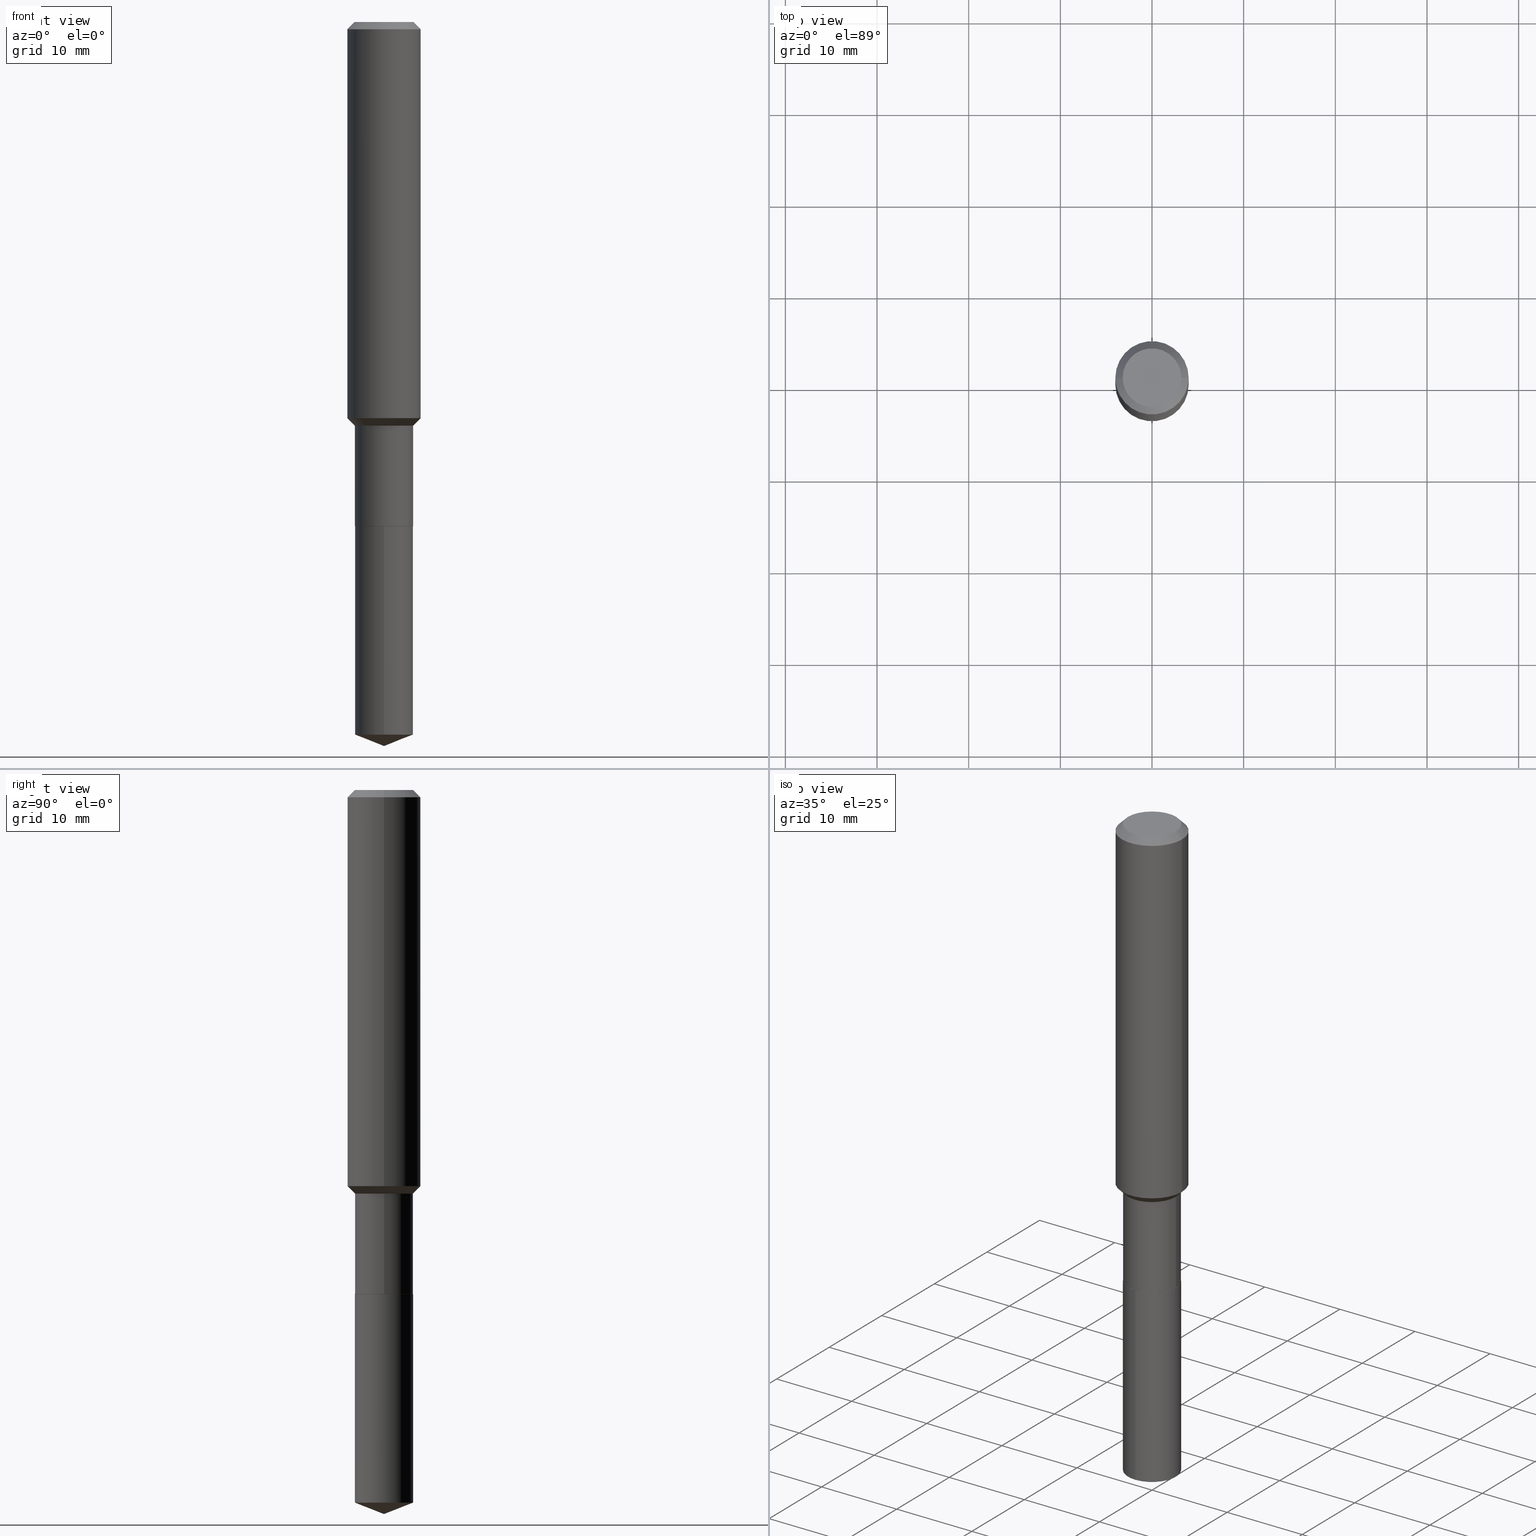
[diagram: canonical four-view strip — front | top / right | iso, engineering-drawing reading convention]
A machine part, canonical four-view strip (front | top / right | iso — engineering-drawing reading convention). The complete STEP part file that produces these views, byte-faithful:
ISO-10303-21;
HEADER;
FILE_DESCRIPTION (( 'STEP AP203' ),
    '1' );
FILE_NAME ('56410.STEP',
    '2024-04-24T17:19:02',
    ( '' ),
    ( '' ),
    'SwSTEP 2.0',
    'SolidWorks 2023',
    '' );
FILE_SCHEMA (( 'CONFIG_CONTROL_DESIGN' ));
ENDSEC;

DATA;
#1 = DIRECTION ( 'NONE',  ( -1.000000000000000000, 6.982962677686265922E-15, 0.000000000000000000 ) ) ;
#2 = DIRECTION ( 'NONE',  ( -6.982962677686265922E-15, -1.000000000000000000, 4.370956789862821150E-15 ) ) ;
#3 = DATE_AND_TIME ( #349, #156 ) ;
#4 = DIRECTION ( 'NONE',  ( 1.000000000000000000, -6.982962677686263555E-15, 0.000000000000000000 ) ) ;
#5 = DIRECTION ( 'NONE',  ( 1.000000000000000000, -6.982962677686263555E-15, 0.000000000000000000 ) ) ;
#6 = VECTOR ( 'NONE', #293, 39.37007874015748143 ) ;
#7 = DIRECTION ( 'NONE',  ( -0.7071067811865499042, 7.493145998870363626E-15, 0.7071067811865451302 ) ) ;
#8 = ADVANCED_FACE ( 'NONE', ( #452 ), #371, .T. ) ;
#9 = DIRECTION ( 'NONE',  ( 1.000000000000000000, -6.982962677686265922E-15, 4.876281427513067258E-29 ) ) ;
#10 = DIRECTION ( 'NONE',  ( 1.000000000000000000, -6.982962677686265922E-15, 4.876281427513067258E-29 ) ) ;
#11 = PERSON_AND_ORGANIZATION_ROLE ( 'classification_officer' ) ;
#12 = CARTESIAN_POINT ( 'NONE',  ( -0.1249999999999999861, -5.166399369987772470E-15, -1.734099999999999975 ) ) ;
#13 = LINE ( 'NONE', #175, #115 ) ;
#14 = FACE_OUTER_BOUND ( 'NONE', #227, .T. ) ;
#15 = PERSON_AND_ORGANIZATION_ROLE ( 'creator' ) ;
#16 = VECTOR ( 'NONE', #130, 39.37007874015748143 ) ;
#17 = CARTESIAN_POINT ( 'NONE',  ( 7.703226739483226095E-31, -1.099816621735597415E-16, -0.03150000000000018757 ) ) ;
#18 = ADVANCED_FACE ( 'NONE', ( #340 ), #447, .T. ) ;
#19 = AXIS2_PLACEMENT_3D ( 'NONE', #312, #236, #119 ) ;
#20 = EDGE_LOOP ( 'NONE', ( #54, #417, #181, #38 ) ) ;
#21 = PRODUCT_DEFINITION_SHAPE ( 'NONE', 'NONE',  #213 ) ;
#22 = MANIFOLD_SOLID_BREP ( 'Body-Move/Copy2[2]', #435 ) ;
#23 = ORIENTED_EDGE ( 'NONE', *, *, #101, .F. ) ;
#24 = VECTOR ( 'NONE', #409, 39.37007874015748143 ) ;
#25 = AXIS2_PLACEMENT_3D ( 'NONE', #59, #398, #9 ) ;
#26 = DATE_AND_TIME ( #104, #48 ) ;
#27 = CARTESIAN_POINT ( 'NONE',  ( -0.1244999999999999996, -6.672829609801627587E-15, -2.165299999999999780 ) ) ;
#28 = DIRECTION ( 'NONE',  ( 0.7071067811866682540, -2.468850131083521605E-15, 0.7071067811864267805 ) ) ;
#29 = CC_DESIGN_PERSON_AND_ORGANIZATION_ASSIGNMENT ( #45, #83, ( #204 ) ) ;
#30 = FACE_OUTER_BOUND ( 'NONE', #454, .T. ) ;
#31 = VERTEX_POINT ( 'NONE', #307 ) ;
#32 = VERTEX_POINT ( 'NONE', #131 ) ;
#33 = EDGE_CURVE ( 'NONE', #245, #253, #226, .T. ) ;
#34 =( NAMED_UNIT ( * ) SI_UNIT ( $, .STERADIAN. ) SOLID_ANGLE_UNIT ( ) );
#35 = CARTESIAN_POINT ( 'NONE',  ( 5.293950871629583880E-29, -7.558358802327641618E-15, -2.164800000000000058 ) ) ;
#36 = CARTESIAN_POINT ( 'NONE',  ( 5.295173606032675561E-29, -7.560104542997063911E-15, -2.165299999999999780 ) ) ;
#37 = AXIS2_PLACEMENT_3D ( 'NONE', #36, #252, #155 ) ;
#38 = ORIENTED_EDGE ( 'NONE', *, *, #351, .F. ) ;
#39 = CC_DESIGN_SECURITY_CLASSIFICATION ( #157, ( #60 ) ) ;
#40 = CARTESIAN_POINT ( 'NONE',  ( 5.295173606032675561E-29, -7.560104542997063911E-15, -2.165299999999999780 ) ) ;
#41 = AXIS2_PLACEMENT_3D ( 'NONE', #469, #390, #281 ) ;
#42 = CARTESIAN_POINT ( 'NONE',  ( 0.1575000000000000011, -1.209798283909146741E-15, -0.03150000000000018757 ) ) ;
#43 = PERSON ( 'UNSPECIFIED', 'UNSPECIFIED', 'UNSPECIFIED', ('UNSPECIFIED'), ('UNSPECIFIED'), ('UNSPECIFIED') ) ;
#44 = VERTEX_POINT ( 'NONE', #120 ) ;
#45 = PERSON_AND_ORGANIZATION ( #43, #403 ) ;
#46 = CARTESIAN_POINT ( 'NONE',  ( -8.728703347107302879E-16, -0.1250000000000075495, -2.165299999999999336 ) ) ;
#47 = PERSON_AND_ORGANIZATION ( #43, #403 ) ;
#48 = LOCAL_TIME ( 13, 19, 2.000000000000000000, #193 ) ;
#49 = COORDINATED_UNIVERSAL_TIME_OFFSET ( 5, 0, .BEHIND. ) ;
#50 = CIRCLE ( 'NONE', #481, 0.1575000000000000011 ) ;
#51 = CARTESIAN_POINT ( 'NONE',  ( 8.881784197001780860E-16, 0.1249999999999924366, -2.165300000000000669 ) ) ;
#52 = VERTEX_POINT ( 'NONE', #169 ) ;
#53 = DIRECTION ( 'NONE',  ( -2.445165186319441374E-29, 3.491916139771790878E-15, 1.000000000000000000 ) ) ;
#54 = ORIENTED_EDGE ( 'NONE', *, *, #33, .T. ) ;
#55 = DATE_TIME_ROLE ( 'classification_date' ) ;
#56 = CARTESIAN_POINT ( 'NONE',  ( 7.604952762490726839E-29, -1.086055757791822403E-14, -3.110199999999999854 ) ) ;
#57 = CIRCLE ( 'NONE', #470, 0.1249999999999999861 ) ;
#58 = CARTESIAN_POINT ( 'NONE',  ( 0.1244999999999999996, -8.429483396369002665E-15, -2.165299999999999780 ) ) ;
#59 = CARTESIAN_POINT ( 'NONE',  ( -9.439721640706201686E-47, 1.347742071746726764E-32, 3.860086710912459732E-18 ) ) ;
#60 = PRODUCT_DEFINITION_FORMATION_WITH_SPECIFIED_SOURCE ( 'ANY', '', #204, .NOT_KNOWN. ) ;
#61 = AXIS2_PLACEMENT_3D ( 'NONE', #295, #407, #107 ) ;
#62 = EDGE_CURVE ( 'NONE', #474, #323, #471, .T. ) ;
#63 = ORIENTED_EDGE ( 'NONE', *, *, #473, .T. ) ;
#64 = VERTEX_POINT ( 'NONE', #420 ) ;
#65 =( GEOMETRIC_REPRESENTATION_CONTEXT ( 3 ) GLOBAL_UNCERTAINTY_ASSIGNED_CONTEXT ( ( #286 ) ) GLOBAL_UNIT_ASSIGNED_CONTEXT ( ( #346, #444, #34 ) ) REPRESENTATION_CONTEXT ( 'NONE', 'WORKASPACE' ) );
#66 = APPLICATION_PROTOCOL_DEFINITION ( 'international standard', 'config_control_design', 1994, #161 ) ;
#67 = VECTOR ( 'NONE', #277, 39.37007874015748143 ) ;
#68 = CONICAL_SURFACE ( 'NONE', #385, 99.94676754583984746, 1.195550537616119069 ) ;
#69 = ORIENTED_EDGE ( 'NONE', *, *, #473, .F. ) ;
#70 = ORIENTED_EDGE ( 'NONE', *, *, #351, .T. ) ;
#71 = CC_DESIGN_PERSON_AND_ORGANIZATION_ASSIGNMENT ( #94, #167, ( #60 ) ) ;
#72 = DIRECTION ( 'NONE',  ( -2.445468806185136877E-29, 3.491481338843145188E-15, 1.000000000000000000 ) ) ;
#73 = ORIENTED_EDGE ( 'NONE', *, *, #393, .T. ) ;
#74 = ADVANCED_FACE ( 'NONE', ( #237 ), #172, .T. ) ;
#75 = DIRECTION ( 'NONE',  ( 1.000000000000000000, -6.982962677686267499E-15, 4.876176775795935793E-29 ) ) ;
#76 = ORIENTED_EDGE ( 'NONE', *, *, #209, .T. ) ;
#77 = ORIENTED_EDGE ( 'NONE', *, *, #441, .F. ) ;
#78 = ORIENTED_EDGE ( 'NONE', *, *, #269, .F. ) ;
#79 = DATE_AND_TIME ( #408, #141 ) ;
#80 = FACE_OUTER_BOUND ( 'NONE', #162, .T. ) ;
#81 = DIRECTION ( 'NONE',  ( -2.445468806185136597E-29, 3.491481338843145583E-15, 1.000000000000000000 ) ) ;
#82 = ORIENTED_EDGE ( 'NONE', *, *, #484, .F. ) ;
#83 = PERSON_AND_ORGANIZATION_ROLE ( 'design_owner' ) ;
#84 = DIRECTION ( 'NONE',  ( 0.7071067811865453523, -7.319954787623248157E-15, -0.7071067811865496822 ) ) ;
#85 = DIRECTION ( 'NONE',  ( -6.982962677686265922E-15, -1.000000000000000000, 3.498627837350008561E-15 ) ) ;
#86 = CYLINDRICAL_SURFACE ( 'NONE', #182, 0.1250000000000000000 ) ;
#87 = CARTESIAN_POINT ( 'NONE',  ( 4.240687456805644908E-29, -6.054577789687898491E-15, -1.734099999999999975 ) ) ;
#88 = VECTOR ( 'NONE', #173, 39.37007874015748143 ) ;
#89 = CIRCLE ( 'NONE', #219, 0.1250000000000000000 ) ;
#90 = AXIS2_PLACEMENT_3D ( 'NONE', #35, #370, #489 ) ;
#91 = CYLINDRICAL_SURFACE ( 'NONE', #19, 0.1575000000000000844 ) ;
#92 = EDGE_CURVE ( 'NONE', #44, #245, #127, .T. ) ;
#93 = CARTESIAN_POINT ( 'NONE',  ( 4.240687456805644908E-29, -6.054577789687898491E-15, -1.734099999999999975 ) ) ;
#94 = PERSON_AND_ORGANIZATION ( #43, #403 ) ;
#95 = CARTESIAN_POINT ( 'NONE',  ( 0.1575000000000001954, -7.040921267911083506E-15, -1.701600000000000001 ) ) ;
#96 = ORIENTED_EDGE ( 'NONE', *, *, #414, .F. ) ;
#97 = APPROVAL_PERSON_ORGANIZATION ( #116, #223, #263 ) ;
#98 = ORIENTED_EDGE ( 'NONE', *, *, #92, .F. ) ;
#99 = ORIENTED_EDGE ( 'NONE', *, *, #294, .T. ) ;
#100 = ORIENTED_EDGE ( 'NONE', *, *, #164, .T. ) ;
#101 = EDGE_CURVE ( 'NONE', #397, #317, #13, .T. ) ;
#102 = ORIENTED_EDGE ( 'NONE', *, *, #441, .T. ) ;
#103 = AXIS2_PLACEMENT_3D ( 'NONE', #339, #451, #487 ) ;
#104 = CALENDAR_DATE ( 2024, 24, 4 ) ;
#105 = DIRECTION ( 'NONE',  ( -6.982962677686265922E-15, -1.000000000000000000, 3.498627837350008561E-15 ) ) ;
#106 = ORIENTED_EDGE ( 'NONE', *, *, #309, .F. ) ;
#107 = DIRECTION ( 'NONE',  ( -1.000000000000000000, 6.982962677686265922E-15, -4.876176775795935793E-29 ) ) ;
#108 = ADVANCED_FACE ( 'NONE', ( #271 ), #91, .T. ) ;
#109 = DIRECTION ( 'NONE',  ( -2.445468806185136597E-29, 3.491481338843145583E-15, 1.000000000000000000 ) ) ;
#110 = VERTEX_POINT ( 'NONE', #380 ) ;
#111 = EDGE_CURVE ( 'NONE', #485, #253, #386, .T. ) ;
#112 = PLANE ( 'NONE',  #320 ) ;
#113 = ORIENTED_EDGE ( 'NONE', *, *, #33, .F. ) ;
#114 = CIRCLE ( 'NONE', #289, 0.1249999999999999861 ) ;
#115 = VECTOR ( 'NONE', #84, 39.37007874015748143 ) ;
#116 = PERSON_AND_ORGANIZATION ( #43, #403 ) ;
#117 = ORIENTED_EDGE ( 'NONE', *, *, #101, .T. ) ;
#118 = DIRECTION ( 'NONE',  ( 0.000000000000000000, 0.000000000000000000, 1.000000000000000000 ) ) ;
#119 = DIRECTION ( 'NONE',  ( 1.000000000000000000, -6.982962677686267499E-15, 4.876176775795936353E-29 ) ) ;
#120 = CARTESIAN_POINT ( 'NONE',  ( 0.1249999999999999861, -6.927448124398681041E-15, -1.734099999999999975 ) ) ;
#121 = AXIS2_PLACEMENT_3D ( 'NONE', #160, #201, #10 ) ;
#122 = ADVANCED_BREP_SHAPE_REPRESENTATION ( '56410', ( #336, #22, #273 ), #65 ) ;
#123 = ADVANCED_FACE ( 'NONE', ( #168 ), #266, .F. ) ;
#124 = EDGE_LOOP ( 'NONE', ( #367, #372, #419 ) ) ;
#125 = DATE_AND_TIME ( #268, #360 ) ;
#126 = CC_DESIGN_PERSON_AND_ORGANIZATION_ASSIGNMENT ( #241, #11, ( #157 ) ) ;
#127 = LINE ( 'NONE', #313, #430 ) ;
#128 = CARTESIAN_POINT ( 'NONE',  ( -8.728703347107081012E-16, -0.1250000000000106581, -3.060961190548132205 ) ) ;
#129 = DIRECTION ( 'NONE',  ( -6.982962677686265922E-15, -1.000000000000000000, 4.370956789862821150E-15 ) ) ;
#130 = DIRECTION ( 'NONE',  ( -2.445468806185136877E-29, 3.491481338843145188E-15, 1.000000000000000000 ) ) ;
#131 = CARTESIAN_POINT ( 'NONE',  ( 0.1244999999999999996, -8.429483396369002665E-15, -2.165299999999999780 ) ) ;
#132 = CARTESIAN_POINT ( 'NONE',  ( -0.1249999999999999861, -5.918289876307644428E-15, -1.734099999999999975 ) ) ;
#133 = CARTESIAN_POINT ( 'NONE',  ( 5.295173606032675561E-29, -7.560104542997063911E-15, -2.165299999999999780 ) ) ;
#134 = AXIS2_PLACEMENT_3D ( 'NONE', #147, #418, #190 ) ;
#135 = VECTOR ( 'NONE', #203, 39.37007874015748143 ) ;
#136 = CARTESIAN_POINT ( 'NONE',  ( -0.1575000000000000011, 9.898349595620272334E-16, -0.03150000000000018757 ) ) ;
#137 = FACE_OUTER_BOUND ( 'NONE', #260, .T. ) ;
#138 = ORIENTED_EDGE ( 'NONE', *, *, #166, .T. ) ;
#139 = DIRECTION ( 'NONE',  ( -2.445468806185136597E-29, 3.491481338843145583E-15, 1.000000000000000000 ) ) ;
#140 = EDGE_CURVE ( 'NONE', #32, #64, #411, .T. ) ;
#141 = LOCAL_TIME ( 13, 19, 2.000000000000000000, #478 ) ;
#142 = EDGE_LOOP ( 'NONE', ( #404, #208, #144, #329 ) ) ;
#143 = ORIENTED_EDGE ( 'NONE', *, *, #294, .F. ) ;
#144 = ORIENTED_EDGE ( 'NONE', *, *, #140, .T. ) ;
#145 = EDGE_CURVE ( 'NONE', #153, #52, #486, .T. ) ;
#146 = COORDINATED_UNIVERSAL_TIME_OFFSET ( 5, 0, .BEHIND. ) ;
#147 = CARTESIAN_POINT ( 'NONE',  ( 5.295173606032675561E-29, -7.560104542997063911E-15, -2.165299999999999780 ) ) ;
#148 = ORIENTED_EDGE ( 'NONE', *, *, #459, .T. ) ;
#149 = AXIS2_PLACEMENT_3D ( 'NONE', #93, #179, #4 ) ;
#150 = LOCAL_TIME ( 13, 19, 2.000000000000000000, #463 ) ;
#151 = AXIS2_PLACEMENT_3D ( 'NONE', #198, #427, #461 ) ;
#152 = DIRECTION ( 'NONE',  ( -2.445468806185136597E-29, 3.491481338843145583E-15, 1.000000000000000000 ) ) ;
#153 = VERTEX_POINT ( 'NONE', #56 ) ;
#154 = PLANE ( 'NONE',  #61 ) ;
#155 = DIRECTION ( 'NONE',  ( -6.982962677686265922E-15, -1.000000000000000000, 4.370956789862821150E-15 ) ) ;
#156 = LOCAL_TIME ( 13, 19, 2.000000000000000000, #146 ) ;
#157 = SECURITY_CLASSIFICATION ( '', '', #230 ) ;
#158 = DIRECTION ( 'NONE',  ( 6.982962677686265922E-15, 1.000000000000000000, -3.491916139771791272E-15 ) ) ;
#159 = AXIS2_PLACEMENT_3D ( 'NONE', #133, #53, #355 ) ;
#160 = CARTESIAN_POINT ( 'NONE',  ( -9.439721640706201686E-47, 1.347742071746726764E-32, 3.860086710912459732E-18 ) ) ;
#161 = APPLICATION_CONTEXT ( 'configuration controlled 3d designs of mechanical parts and assemblies' ) ;
#162 = EDGE_LOOP ( 'NONE', ( #99, #214 ) ) ;
#163 = LINE ( 'NONE', #46, #330 ) ;
#164 = EDGE_CURVE ( 'NONE', #317, #323, #50, .T. ) ;
#165 = DIRECTION ( 'NONE',  ( -2.445165186319441374E-29, 3.491916139771791272E-15, 1.000000000000000000 ) ) ;
#166 = EDGE_CURVE ( 'NONE', #280, #52, #89, .T. ) ;
#167 = PERSON_AND_ORGANIZATION_ROLE ( 'design_supplier' ) ;
#168 = FACE_OUTER_BOUND ( 'NONE', #304, .T. ) ;
#169 = CARTESIAN_POINT ( 'NONE',  ( 8.881784197001997797E-16, 0.1249999999999892863, -3.060961190548133093 ) ) ;
#170 = DIRECTION ( 'NONE',  ( -2.445165186319441374E-29, 3.491916139771791272E-15, 1.000000000000000000 ) ) ;
#171 = FACE_OUTER_BOUND ( 'NONE', #210, .T. ) ;
#172 = CYLINDRICAL_SURFACE ( 'NONE', #275, 0.1575000000000000844 ) ;
#173 = DIRECTION ( 'NONE',  ( -2.445468806185136877E-29, 3.491481338843145188E-15, 1.000000000000000000 ) ) ;
#174 = CARTESIAN_POINT ( 'NONE',  ( 5.295173606032675561E-29, -7.560104542997063911E-15, -2.165299999999999780 ) ) ;
#175 = CARTESIAN_POINT ( 'NONE',  ( 0.1575000000000000011, -1.190510096822576026E-15, -0.03150000000000018757 ) ) ;
#176 = VECTOR ( 'NONE', #72, 39.37007874015748143 ) ;
#177 = DIRECTION ( 'NONE',  ( 2.445468806185136597E-29, -3.491481338843145583E-15, -1.000000000000000000 ) ) ;
#178 = CALENDAR_DATE ( 2024, 24, 4 ) ;
#179 = DIRECTION ( 'NONE',  ( -2.445468806185136597E-29, 3.491481338843145583E-15, 1.000000000000000000 ) ) ;
#180 = APPROVAL_STATUS ( 'not_yet_approved' ) ;
#181 = ORIENTED_EDGE ( 'NONE', *, *, #164, .F. ) ;
#182 = AXIS2_PLACEMENT_3D ( 'NONE', #40, #466, #129 ) ;
#183 = ORIENTED_EDGE ( 'NONE', *, *, #231, .T. ) ;
#184 = DATE_TIME_ROLE ( 'creation_date' ) ;
#185 = VERTEX_POINT ( 'NONE', #27 ) ;
#186 = AXIS2_PLACEMENT_3D ( 'NONE', #362, #152, #446 ) ;
#187 = AXIS2_PLACEMENT_3D ( 'NONE', #229, #310, #379 ) ;
#188 = CARTESIAN_POINT ( 'NONE',  ( 5.293950871629583880E-29, -7.558358802327641618E-15, -2.164800000000000058 ) ) ;
#189 = ORIENTED_EDGE ( 'NONE', *, *, #331, .T. ) ;
#190 = DIRECTION ( 'NONE',  ( 1.000000000000000000, -6.982962677686266711E-15, 0.000000000000000000 ) ) ;
#191 = EDGE_LOOP ( 'NONE', ( #138, #63, #143, #77 ) ) ;
#192 = FACE_OUTER_BOUND ( 'NONE', #142, .T. ) ;
#193 = COORDINATED_UNIVERSAL_TIME_OFFSET ( 5, 0, .BEHIND. ) ;
#194 = CIRCLE ( 'NONE', #490, 0.1250000000000000555 ) ;
#195 = VECTOR ( 'NONE', #165, 39.37007874015748143 ) ;
#196 = ADVANCED_FACE ( 'NONE', ( #247 ), #154, .F. ) ;
#197 = APPROVAL_ROLE ( '' ) ;
#198 = CARTESIAN_POINT ( 'NONE',  ( 4.161209720604628507E-29, -5.941104646175496815E-15, -1.701600000000000001 ) ) ;
#199 = CC_DESIGN_APPROVAL ( #475, ( #157 ) ) ;
#200 = AXIS2_PLACEMENT_3D ( 'NONE', #369, #460, #1 ) ;
#201 = DIRECTION ( 'NONE',  ( -2.445468806185136597E-29, 3.491481338843145583E-15, 1.000000000000000000 ) ) ;
#202 = DIRECTION ( 'NONE',  ( 1.000000000000000000, -6.982962677686267499E-15, 4.876176775795936353E-29 ) ) ;
#203 = DIRECTION ( 'NONE',  ( -2.445468806185136877E-29, 3.491481338843145188E-15, 1.000000000000000000 ) ) ;
#204 = PRODUCT ( '56410', '56410', '', ( #301 ) ) ;
#205 = CARTESIAN_POINT ( 'NONE',  ( 7.606279148417832493E-29, -1.085867462901663375E-14, -3.110199999999999854 ) ) ;
#206 = VECTOR ( 'NONE', #28, 39.37007874015748143 ) ;
#207 = APPROVAL ( #287, 'UNSPECIFIED' ) ;
#208 = ORIENTED_EDGE ( 'NONE', *, *, #324, .T. ) ;
#209 = EDGE_CURVE ( 'NONE', #153, #280, #332, .T. ) ;
#210 = EDGE_LOOP ( 'NONE', ( #69, #450, #102, #82 ) ) ;
#211 = AXIS2_PLACEMENT_3D ( 'NONE', #423, #316, #85 ) ;
#212 = CIRCLE ( 'NONE', #134, 0.1244999999999999996 ) ;
#213 = PRODUCT_DEFINITION ( 'UNKNOWN', '', #60, #381 ) ;
#214 = ORIENTED_EDGE ( 'NONE', *, *, #484, .T. ) ;
#215 = ORIENTED_EDGE ( 'NONE', *, *, #62, .T. ) ;
#216 = FACE_OUTER_BOUND ( 'NONE', #278, .T. ) ;
#217 = ADVANCED_FACE ( 'NONE', ( #216 ), #413, .T. ) ;
#218 = ADVANCED_FACE ( 'NONE', ( #14 ), #352, .T. ) ;
#219 = AXIS2_PLACEMENT_3D ( 'NONE', #338, #443, #488 ) ;
#220 = CARTESIAN_POINT ( 'NONE',  ( 5.295173606032675561E-29, -7.560104542997063911E-15, -2.165299999999999780 ) ) ;
#221 = CARTESIAN_POINT ( 'NONE',  ( 0.000000000000000000, 0.000000000000000000, 0.000000000000000000 ) ) ;
#222 = LENGTH_MEASURE_WITH_UNIT ( LENGTH_MEASURE( 0.02539999999999999897 ), #274 );
#223 = APPROVAL ( #249, 'UNSPECIFIED' ) ;
#224 = CARTESIAN_POINT ( 'NONE',  ( -8.866073572750232729E-28, 1.266173972733747384E-13, 36.25987874015748247 ) ) ;
#225 = CIRCLE ( 'NONE', #90, 0.1250000000000000555 ) ;
#226 = CIRCLE ( 'NONE', #151, 0.1575000000000001954 ) ;
#227 = EDGE_LOOP ( 'NONE', ( #23, #106, #215, #183 ) ) ;
#228 = LINE ( 'NONE', #432, #135 ) ;
#229 = CARTESIAN_POINT ( 'NONE',  ( 5.295173606032675561E-29, -7.560104542997063911E-15, -2.165299999999999780 ) ) ;
#230 = SECURITY_CLASSIFICATION_LEVEL ( 'unclassified' ) ;
#231 = EDGE_CURVE ( 'NONE', #323, #317, #257, .T. ) ;
#232 = APPROVAL_PERSON_ORGANIZATION ( #378, #207, #197 ) ;
#233 = CARTESIAN_POINT ( 'NONE',  ( 0.000000000000000000, 0.000000000000000000, 0.000000000000000000 ) ) ;
#234 = DIRECTION ( 'NONE',  ( -2.445468806185136597E-29, 3.491481338843145583E-15, 1.000000000000000000 ) ) ;
#235 = CIRCLE ( 'NONE', #159, 0.1250000000000000000 ) ;
#236 = DIRECTION ( 'NONE',  ( -2.445468806185136597E-29, 3.491481338843145583E-15, 1.000000000000000000 ) ) ;
#237 = FACE_OUTER_BOUND ( 'NONE', #20, .T. ) ;
#238 = DIMENSIONAL_EXPONENTS ( 1.000000000000000000, 0.000000000000000000, 0.000000000000000000, 0.000000000000000000, 0.000000000000000000, 0.000000000000000000, 0.000000000000000000 ) ;
#239 = DIRECTION ( 'NONE',  ( -1.000000000000000000, 6.982962677686265922E-15, 0.000000000000000000 ) ) ;
#240 = ORIENTED_EDGE ( 'NONE', *, *, #279, .F. ) ;
#241 = PERSON_AND_ORGANIZATION ( #43, #403 ) ;
#242 = EDGE_LOOP ( 'NONE', ( #73, #433, #96, #440 ) ) ;
#243 = ORIENTED_EDGE ( 'NONE', *, *, #309, .T. ) ;
#244 = CARTESIAN_POINT ( 'NONE',  ( 7.703226739483226095E-31, -1.099816621735597415E-16, -0.03150000000000018757 ) ) ;
#245 = VERTEX_POINT ( 'NONE', #95 ) ;
#246 = AXIS2_PLACEMENT_3D ( 'NONE', #174, #388, #468 ) ;
#247 = FACE_OUTER_BOUND ( 'NONE', #348, .T. ) ;
#248 = AXIS2_PLACEMENT_3D ( 'NONE', #244, #177, #239 ) ;
#249 = APPROVAL_STATUS ( 'not_yet_approved' ) ;
#250 = CARTESIAN_POINT ( 'NONE',  ( 0.1575000000000000844, -1.099816621735587677E-15, 7.679978421878603638E-30 ) ) ;
#251 = CC_DESIGN_DATE_AND_TIME_ASSIGNMENT ( #26, #184, ( #213 ) ) ;
#252 = DIRECTION ( 'NONE',  ( -2.445165186319441374E-29, 3.491916139771790878E-15, 1.000000000000000000 ) ) ;
#253 = VERTEX_POINT ( 'NONE', #425 ) ;
#254 = CARTESIAN_POINT ( 'NONE',  ( -0.1244999999999999996, -6.675478836975738788E-15, -2.165299999999999780 ) ) ;
#255 = CONICAL_SURFACE ( 'NONE', #103, 0.1249999999999999861, 0.7853981633974517207 ) ;
#256 = ADVANCED_FACE ( 'NONE', ( #171 ), #86, .T. ) ;
#257 = CIRCLE ( 'NONE', #41, 0.1575000000000000011 ) ;
#258 = CARTESIAN_POINT ( 'NONE',  ( -8.728703347107302879E-16, -0.1250000000000075495, -2.165299999999999336 ) ) ;
#259 = DIRECTION ( 'NONE',  ( -2.445468806185136597E-29, 3.491481338843145583E-15, 1.000000000000000000 ) ) ;
#260 = EDGE_LOOP ( 'NONE', ( #405, #483, #113, #98 ) ) ;
#261 = CARTESIAN_POINT ( 'NONE',  ( 0.000000000000000000, 0.000000000000000000, 0.000000000000000000 ) ) ;
#262 = CARTESIAN_POINT ( 'NONE',  ( 0.000000000000000000, 0.000000000000000000, 0.000000000000000000 ) ) ;
#263 = APPROVAL_ROLE ( '' ) ;
#264 = LINE ( 'NONE', #51, #195 ) ;
#265 = CIRCLE ( 'NONE', #422, 0.1250000000000000000 ) ;
#266 = PLANE ( 'NONE',  #187 ) ;
#267 = DIRECTION ( 'NONE',  ( -2.445468806185136597E-29, 3.491481338843145583E-15, 1.000000000000000000 ) ) ;
#268 = CALENDAR_DATE ( 2024, 24, 4 ) ;
#269 = EDGE_CURVE ( 'NONE', #253, #323, #228, .T. ) ;
#270 = CARTESIAN_POINT ( 'NONE',  ( 5.295173606032675561E-29, -7.560104542997063911E-15, -2.165299999999999780 ) ) ;
#271 = FACE_OUTER_BOUND ( 'NONE', #358, .T. ) ;
#272 = PERSON_AND_ORGANIZATION ( #43, #403 ) ;
#273 = AXIS2_PLACEMENT_3D ( 'NONE', #261, #118, #326 ) ;
#274 =( LENGTH_UNIT ( ) NAMED_UNIT ( * ) SI_UNIT ( $, .METRE. ) );
#275 = AXIS2_PLACEMENT_3D ( 'NONE', #233, #81, #202 ) ;
#276 = AXIS2_PLACEMENT_3D ( 'NONE', #334, #482, #412 ) ;
#277 = DIRECTION ( 'NONE',  ( 6.611014441532066589E-15, 0.9304175679820270162, 0.3665012267242909183 ) ) ;
#278 = EDGE_LOOP ( 'NONE', ( #285, #117, #100, #292 ) ) ;
#279 = EDGE_CURVE ( 'NONE', #485, #44, #57, .T. ) ;
#280 = VERTEX_POINT ( 'NONE', #128 ) ;
#281 = DIRECTION ( 'NONE',  ( 1.000000000000000000, -6.982962677686265922E-15, 0.000000000000000000 ) ) ;
#282 = ADVANCED_FACE ( 'NONE', ( #428 ), #445, .T. ) ;
#283 = ORIENTED_EDGE ( 'NONE', *, *, #459, .F. ) ;
#284 = ORIENTED_EDGE ( 'NONE', *, *, #145, .F. ) ;
#285 = ORIENTED_EDGE ( 'NONE', *, *, #477, .F. ) ;
#286 = UNCERTAINTY_MEASURE_WITH_UNIT (LENGTH_MEASURE( 1.000000000000000082E-05 ), #346, 'distance_accuracy_value', 'NONE');
#287 = APPROVAL_STATUS ( 'not_yet_approved' ) ;
#288 = ORIENTED_EDGE ( 'NONE', *, *, #231, .F. ) ;
#289 = AXIS2_PLACEMENT_3D ( 'NONE', #87, #234, #5 ) ;
#290 = VECTOR ( 'NONE', #7, 39.37007874015748143 ) ;
#291 = CARTESIAN_POINT ( 'NONE',  ( -0.1575000000000000011, -1.906438345352368955E-15, -0.03150000000000018757 ) ) ;
#292 = ORIENTED_EDGE ( 'NONE', *, *, #62, .F. ) ;
#293 = DIRECTION ( 'NONE',  ( -6.497071151882118258E-15, -0.9304175679820244627, 0.3665012267242974686 ) ) ;
#294 = EDGE_CURVE ( 'NONE', #396, #110, #235, .T. ) ;
#295 = CARTESIAN_POINT ( 'NONE',  ( -4.719860820353100843E-47, 6.738710358733633822E-33, 1.930043355456229866E-18 ) ) ;
#296 = CC_DESIGN_PERSON_AND_ORGANIZATION_ASSIGNMENT ( #272, #15, ( #60 ) ) ;
#297 = CARTESIAN_POINT ( 'NONE',  ( 0.1260000000000000009, -1.027466422270894443E-15, 3.860086710919128072E-18 ) ) ;
#298 = ORIENTED_EDGE ( 'NONE', *, *, #393, .F. ) ;
#299 = CONICAL_SURFACE ( 'NONE', #186, 0.1244999999999999996, 0.7853981633976190313 ) ;
#300 = ADVANCED_FACE ( 'NONE', ( #137 ), #343, .T. ) ;
#301 = MECHANICAL_CONTEXT ( 'NONE', #306, 'mechanical' ) ;
#302 = EDGE_CURVE ( 'NONE', #64, #44, #308, .T. ) ;
#303 = CIRCLE ( 'NONE', #391, 0.1575000000000001954 ) ;
#304 = EDGE_LOOP ( 'NONE', ( #298, #328 ) ) ;
#305 = DIRECTION ( 'NONE',  ( 1.000000000000000000, -6.982962677686265922E-15, 0.000000000000000000 ) ) ;
#306 = APPLICATION_CONTEXT ( 'configuration controlled 3d designs of mechanical parts and assemblies' ) ;
#307 = CARTESIAN_POINT ( 'NONE',  ( -0.1250000000000000555, -5.918289876307644428E-15, -2.164800000000000058 ) ) ;
#308 = LINE ( 'NONE', #384, #16 ) ;
#309 = EDGE_CURVE ( 'NONE', #474, #397, #383, .T. ) ;
#310 = DIRECTION ( 'NONE',  ( -2.438088387897960049E-29, 3.491481338843145188E-15, 1.000000000000000000 ) ) ;
#311 = CARTESIAN_POINT ( 'NONE',  ( 4.240687456805644908E-29, -6.054577789687898491E-15, -1.734099999999999975 ) ) ;
#312 = CARTESIAN_POINT ( 'NONE',  ( 0.000000000000000000, 0.000000000000000000, 0.000000000000000000 ) ) ;
#313 = CARTESIAN_POINT ( 'NONE',  ( 0.1249999999999999861, -6.927448124398681041E-15, -1.734099999999999975 ) ) ;
#314 = LINE ( 'NONE', #344, #88 ) ;
#315 = AXIS2_PLACEMENT_3D ( 'NONE', #262, #456, #75 ) ;
#316 = DIRECTION ( 'NONE',  ( -2.445165186319441374E-29, 3.491916139771790878E-15, 1.000000000000000000 ) ) ;
#317 = VERTEX_POINT ( 'NONE', #42 ) ;
#318 = EDGE_CURVE ( 'NONE', #253, #245, #303, .T. ) ;
#319 = ADVANCED_FACE ( 'NONE', ( #192 ), #299, .T. ) ;
#320 = AXIS2_PLACEMENT_3D ( 'NONE', #220, #374, #158 ) ;
#321 = APPROVAL_PERSON_ORGANIZATION ( #47, #475, #353 ) ;
#322 = ADVANCED_FACE ( 'NONE', ( #479 ), #327, .T. ) ;
#323 = VERTEX_POINT ( 'NONE', #291 ) ;
#324 = EDGE_CURVE ( 'NONE', #185, #32, #212, .T. ) ;
#325 = CC_DESIGN_DATE_AND_TIME_ASSIGNMENT ( #382, #55, ( #157 ) ) ;
#326 = DIRECTION ( 'NONE',  ( 1.000000000000000000, 0.000000000000000000, 0.000000000000000000 ) ) ;
#327 = CYLINDRICAL_SURFACE ( 'NONE', #37, 0.1250000000000000000 ) ;
#328 = ORIENTED_EDGE ( 'NONE', *, *, #324, .F. ) ;
#329 = ORIENTED_EDGE ( 'NONE', *, *, #331, .F. ) ;
#330 = VECTOR ( 'NONE', #170, 39.37007874015748143 ) ;
#331 = EDGE_CURVE ( 'NONE', #31, #64, #194, .T. ) ;
#332 = LINE ( 'NONE', #363, #6 ) ;
#333 = CLOSED_SHELL ( 'NONE', ( #322, #335, #18, #256, #399 ) ) ;
#334 = CARTESIAN_POINT ( 'NONE',  ( 5.295173606032675561E-29, -7.560104542997063911E-15, -2.165299999999999780 ) ) ;
#335 = ADVANCED_FACE ( 'NONE', ( #415 ), #68, .T. ) ;
#336 = MANIFOLD_SOLID_BREP ( 'Body-Move/Copy2[1]', #333 ) ;
#337 = FACE_OUTER_BOUND ( 'NONE', #400, .T. ) ;
#338 = CARTESIAN_POINT ( 'NONE',  ( 7.485213167898394894E-29, -1.068767831003930387E-14, -3.060961190548132649 ) ) ;
#339 = CARTESIAN_POINT ( 'NONE',  ( 4.240687456805644908E-29, -6.054577789687898491E-15, -1.734099999999999975 ) ) ;
#340 = FACE_OUTER_BOUND ( 'NONE', #389, .T. ) ;
#341 = CC_DESIGN_APPROVAL ( #207, ( #213 ) ) ;
#342 = AXIS2_PLACEMENT_3D ( 'NONE', #221, #259, #416 ) ;
#343 = CONICAL_SURFACE ( 'NONE', #149, 0.1249999999999999861, 0.7853981633974517207 ) ;
#344 = CARTESIAN_POINT ( 'NONE',  ( -0.1250000000000000278, 8.881784197001254296E-16, -6.148668862818634329E-30 ) ) ;
#345 = CARTESIAN_POINT ( 'NONE',  ( 4.161209720604628507E-29, -5.941104646175496815E-15, -1.701600000000000001 ) ) ;
#346 =( CONVERSION_BASED_UNIT ( 'INCH', #222 ) LENGTH_UNIT ( ) NAMED_UNIT ( #238 ) );
#347 = CARTESIAN_POINT ( 'NONE',  ( 7.485213167898394894E-29, -1.068767831003930387E-14, -3.060961190548132649 ) ) ;
#348 = EDGE_LOOP ( 'NONE', ( #243, #457 ) ) ;
#349 = CALENDAR_DATE ( 2024, 24, 4 ) ;
#350 = EDGE_CURVE ( 'NONE', #185, #31, #410, .T. ) ;
#351 = EDGE_CURVE ( 'NONE', #245, #317, #453, .T. ) ;
#352 = CONICAL_SURFACE ( 'NONE', #248, 0.1575000000000000011, 0.7853981633974452814 ) ;
#353 = APPROVAL_ROLE ( '' ) ;
#354 = DIRECTION ( 'NONE',  ( -2.445165186319441374E-29, 3.491916139771790878E-15, 1.000000000000000000 ) ) ;
#355 = DIRECTION ( 'NONE',  ( -6.982962677686265922E-15, -1.000000000000000000, 4.370956789862821150E-15 ) ) ;
#356 = CC_DESIGN_APPROVAL ( #223, ( #60 ) ) ;
#357 = ORIENTED_EDGE ( 'NONE', *, *, #318, .F. ) ;
#358 = EDGE_LOOP ( 'NONE', ( #78, #439, #70, #288 ) ) ;
#359 = ORIENTED_EDGE ( 'NONE', *, *, #448, .F. ) ;
#360 = LOCAL_TIME ( 13, 19, 2.000000000000000000, #49 ) ;
#361 = PERSON_AND_ORGANIZATION ( #43, #403 ) ;
#362 = CARTESIAN_POINT ( 'NONE',  ( 5.295173606032675561E-29, -7.560104542997063911E-15, -2.165299999999999780 ) ) ;
#363 = CARTESIAN_POINT ( 'NONE',  ( 7.604952762490726839E-29, -1.086055757791822403E-14, -3.110199999999999854 ) ) ;
#364 = ADVANCED_FACE ( 'NONE', ( #30 ), #449, .T. ) ;
#365 = CC_DESIGN_PERSON_AND_ORGANIZATION_ASSIGNMENT ( #361, #375, ( #213 ) ) ;
#366 = DIRECTION ( 'NONE',  ( 1.000000000000000000, -6.982962677686267499E-15, 0.000000000000000000 ) ) ;
#367 = ORIENTED_EDGE ( 'NONE', *, *, #209, .F. ) ;
#368 = ORIENTED_EDGE ( 'NONE', *, *, #279, .T. ) ;
#369 = CARTESIAN_POINT ( 'NONE',  ( 7.703226739483226095E-31, -1.099816621735597415E-16, -0.03150000000000018757 ) ) ;
#370 = DIRECTION ( 'NONE',  ( -2.445468806185136597E-29, 3.491481338843145583E-15, 1.000000000000000000 ) ) ;
#371 = CYLINDRICAL_SURFACE ( 'NONE', #342, 0.1250000000000000278 ) ;
#372 = ORIENTED_EDGE ( 'NONE', *, *, #145, .T. ) ;
#373 = APPROVAL_DATE_TIME ( #79, #223 ) ;
#374 = DIRECTION ( 'NONE',  ( 2.445165186319440533E-29, -3.491916139771791272E-15, -1.000000000000000000 ) ) ;
#375 = PERSON_AND_ORGANIZATION_ROLE ( 'creator' ) ;
#376 = DIRECTION ( 'NONE',  ( -2.445165186319441374E-29, 3.491916139771790878E-15, 1.000000000000000000 ) ) ;
#377 = CIRCLE ( 'NONE', #455, 0.1250000000000000000 ) ;
#378 = PERSON_AND_ORGANIZATION ( #43, #403 ) ;
#379 = DIRECTION ( 'NONE',  ( 1.000000000000000000, -6.982962677686265922E-15, 4.876176775795935793E-29 ) ) ;
#380 = CARTESIAN_POINT ( 'NONE',  ( 8.881784197001999769E-16, 0.1249999999999924366, -2.165300000000000669 ) ) ;
#381 = DESIGN_CONTEXT ( 'detailed design', #161, 'design' ) ;
#382 = DATE_AND_TIME ( #178, #150 ) ;
#383 = CIRCLE ( 'NONE', #25, 0.1260000000000000009 ) ;
#384 = CARTESIAN_POINT ( 'NONE',  ( 0.1250000000000000278, -8.728703347107836346E-16, 6.095220969744921142E-30 ) ) ;
#385 = AXIS2_PLACEMENT_3D ( 'NONE', #224, #376, #105 ) ;
#386 = LINE ( 'NONE', #12, #290 ) ;
#387 = DIRECTION ( 'NONE',  ( 0.7071067811865499042, -2.468850131082281515E-15, 0.7071067811865451302 ) ) ;
#388 = DIRECTION ( 'NONE',  ( -2.445468806185136597E-29, 3.491481338843145583E-15, 1.000000000000000000 ) ) ;
#389 = EDGE_LOOP ( 'NONE', ( #284, #76, #401 ) ) ;
#390 = DIRECTION ( 'NONE',  ( -2.445468806185136597E-29, 3.491481338843145583E-15, 1.000000000000000000 ) ) ;
#391 = AXIS2_PLACEMENT_3D ( 'NONE', #345, #267, #305 ) ;
#392 = DIRECTION ( 'NONE',  ( 1.000000000000000000, -6.982962677686263555E-15, 0.000000000000000000 ) ) ;
#393 = EDGE_CURVE ( 'NONE', #32, #185, #429, .T. ) ;
#394 = ADVANCED_FACE ( 'NONE', ( #337 ), #255, .T. ) ;
#395 = ORIENTED_EDGE ( 'NONE', *, *, #302, .F. ) ;
#396 = VERTEX_POINT ( 'NONE', #258 ) ;
#397 = VERTEX_POINT ( 'NONE', #297 ) ;
#398 = DIRECTION ( 'NONE',  ( -2.445468806185136597E-29, 3.491481338843145583E-15, 1.000000000000000000 ) ) ;
#399 = ADVANCED_FACE ( 'NONE', ( #80 ), #112, .F. ) ;
#400 = EDGE_LOOP ( 'NONE', ( #480, #368, #476, #357 ) ) ;
#401 = ORIENTED_EDGE ( 'NONE', *, *, #421, .F. ) ;
#402 = APPROVAL_DATE_TIME ( #3, #207 ) ;
#403 = ORGANIZATION ( 'UNSPECIFIED', 'UNSPECIFIED', '' ) ;
#404 = ORIENTED_EDGE ( 'NONE', *, *, #350, .F. ) ;
#405 = ORIENTED_EDGE ( 'NONE', *, *, #448, .T. ) ;
#406 = VECTOR ( 'NONE', #464, 39.37007874015748143 ) ;
#407 = DIRECTION ( 'NONE',  ( 2.438088387897960049E-29, -3.491481338843145188E-15, -1.000000000000000000 ) ) ;
#408 = CALENDAR_DATE ( 2024, 24, 4 ) ;
#409 = DIRECTION ( 'NONE',  ( -0.7071067811866682540, 7.493145998870789611E-15, 0.7071067811864267805 ) ) ;
#410 = LINE ( 'NONE', #254, #24 ) ;
#411 = LINE ( 'NONE', #58, #206 ) ;
#412 = DIRECTION ( 'NONE',  ( 1.000000000000000000, -6.982962677686266711E-15, 0.000000000000000000 ) ) ;
#413 = CONICAL_SURFACE ( 'NONE', #200, 0.1575000000000000011, 0.7853981633974452814 ) ;
#414 = EDGE_CURVE ( 'NONE', #64, #31, #225, .T. ) ;
#415 = FACE_OUTER_BOUND ( 'NONE', #124, .T. ) ;
#416 = DIRECTION ( 'NONE',  ( 1.000000000000000000, -6.982962677686267499E-15, 4.876176775795935793E-29 ) ) ;
#417 = ORIENTED_EDGE ( 'NONE', *, *, #269, .T. ) ;
#418 = DIRECTION ( 'NONE',  ( -2.445468806185136597E-29, 3.491481338843145583E-15, 1.000000000000000000 ) ) ;
#419 = ORIENTED_EDGE ( 'NONE', *, *, #166, .F. ) ;
#420 = CARTESIAN_POINT ( 'NONE',  ( 0.1250000000000000555, -8.431229137038424957E-15, -2.164800000000000058 ) ) ;
#421 = EDGE_CURVE ( 'NONE', #52, #280, #265, .T. ) ;
#422 = AXIS2_PLACEMENT_3D ( 'NONE', #347, #354, #2 ) ;
#423 = CARTESIAN_POINT ( 'NONE',  ( -8.866073572750232729E-28, 1.266173972733747384E-13, 36.25987874015748247 ) ) ;
#424 = DIRECTION ( 'NONE',  ( -6.982962677686265922E-15, -1.000000000000000000, 4.370956789862821150E-15 ) ) ;
#425 = CARTESIAN_POINT ( 'NONE',  ( -0.1575000000000001954, -4.821999837353336845E-15, -1.701600000000000001 ) ) ;
#426 = APPROVAL_DATE_TIME ( #125, #475 ) ;
#427 = DIRECTION ( 'NONE',  ( -2.445468806185136597E-29, 3.491481338843145583E-15, 1.000000000000000000 ) ) ;
#428 = FACE_OUTER_BOUND ( 'NONE', #242, .T. ) ;
#429 = CIRCLE ( 'NONE', #276, 0.1244999999999999996 ) ;
#430 = VECTOR ( 'NONE', #387, 39.37007874015748143 ) ;
#431 = CIRCLE ( 'NONE', #121, 0.1260000000000000009 ) ;
#432 = CARTESIAN_POINT ( 'NONE',  ( -0.1575000000000000844, 1.119104808822158392E-15, -7.747322767151481189E-30 ) ) ;
#433 = ORIENTED_EDGE ( 'NONE', *, *, #350, .T. ) ;
#434 = DIRECTION ( 'NONE',  ( 1.000000000000000000, -6.982962677686265922E-15, 0.000000000000000000 ) ) ;
#435 = CLOSED_SHELL ( 'NONE', ( #282, #217, #74, #300, #364, #8, #394, #108, #218, #196, #123, #319 ) ) ;
#436 = ORIENTED_EDGE ( 'NONE', *, *, #302, .T. ) ;
#437 = EDGE_LOOP ( 'NONE', ( #283, #189, #436, #240 ) ) ;
#438 = PRODUCT_RELATED_PRODUCT_CATEGORY ( 'detail', '', ( #204 ) ) ;
#439 = ORIENTED_EDGE ( 'NONE', *, *, #318, .T. ) ;
#440 = ORIENTED_EDGE ( 'NONE', *, *, #140, .F. ) ;
#441 = EDGE_CURVE ( 'NONE', #280, #396, #163, .T. ) ;
#442 = ORIENTED_EDGE ( 'NONE', *, *, #414, .T. ) ;
#443 = DIRECTION ( 'NONE',  ( -2.445165186319441374E-29, 3.491916139771790878E-15, 1.000000000000000000 ) ) ;
#444 =( NAMED_UNIT ( * ) PLANE_ANGLE_UNIT ( ) SI_UNIT ( $, .RADIAN. ) );
#445 = CONICAL_SURFACE ( 'NONE', #246, 0.1244999999999999996, 0.7853981633976190313 ) ;
#446 = DIRECTION ( 'NONE',  ( 1.000000000000000000, -6.982962677686266711E-15, 0.000000000000000000 ) ) ;
#447 = CONICAL_SURFACE ( 'NONE', #211, 99.94676754583984746, 1.195550537616119069 ) ;
#448 = EDGE_CURVE ( 'NONE', #44, #485, #114, .T. ) ;
#449 = CYLINDRICAL_SURFACE ( 'NONE', #315, 0.1250000000000000278 ) ;
#450 = ORIENTED_EDGE ( 'NONE', *, *, #421, .T. ) ;
#451 = DIRECTION ( 'NONE',  ( -2.445468806185136597E-29, 3.491481338843145583E-15, 1.000000000000000000 ) ) ;
#452 = FACE_OUTER_BOUND ( 'NONE', #437, .T. ) ;
#453 = LINE ( 'NONE', #250, #176 ) ;
#454 = EDGE_LOOP ( 'NONE', ( #442, #148, #359, #395 ) ) ;
#455 = AXIS2_PLACEMENT_3D ( 'NONE', #270, #467, #424 ) ;
#456 = DIRECTION ( 'NONE',  ( -2.445468806185136597E-29, 3.491481338843145583E-15, 1.000000000000000000 ) ) ;
#457 = ORIENTED_EDGE ( 'NONE', *, *, #477, .T. ) ;
#458 = APPLICATION_PROTOCOL_DEFINITION ( 'international standard', 'config_control_design', 1994, #306 ) ;
#459 = EDGE_CURVE ( 'NONE', #31, #485, #314, .T. ) ;
#460 = DIRECTION ( 'NONE',  ( 2.445468806185136597E-29, -3.491481338843145583E-15, -1.000000000000000000 ) ) ;
#461 = DIRECTION ( 'NONE',  ( 1.000000000000000000, -6.982962677686265922E-15, 0.000000000000000000 ) ) ;
#462 = CARTESIAN_POINT ( 'NONE',  ( -0.1260000000000000009, 9.348441284752484904E-16, 3.860086710906114178E-18 ) ) ;
#463 = COORDINATED_UNIVERSAL_TIME_OFFSET ( 5, 0, .BEHIND. ) ;
#464 = DIRECTION ( 'NONE',  ( -0.7071067811865453523, 2.468850131082234184E-15, -0.7071067811865496822 ) ) ;
#465 = DIRECTION ( 'NONE',  ( -2.445468806185136597E-29, 3.491481338843145583E-15, 1.000000000000000000 ) ) ;
#466 = DIRECTION ( 'NONE',  ( -2.445165186319441374E-29, 3.491916139771790878E-15, 1.000000000000000000 ) ) ;
#467 = DIRECTION ( 'NONE',  ( -2.445165186319441374E-29, 3.491916139771790878E-15, 1.000000000000000000 ) ) ;
#468 = DIRECTION ( 'NONE',  ( 1.000000000000000000, -6.982962677686266711E-15, 0.000000000000000000 ) ) ;
#469 = CARTESIAN_POINT ( 'NONE',  ( 7.703226739483226095E-31, -1.099816621735597415E-16, -0.03150000000000018757 ) ) ;
#470 = AXIS2_PLACEMENT_3D ( 'NONE', #311, #465, #392 ) ;
#471 = LINE ( 'NONE', #136, #406 ) ;
#472 = SHAPE_DEFINITION_REPRESENTATION ( #21, #122 ) ;
#473 = EDGE_CURVE ( 'NONE', #52, #110, #264, .T. ) ;
#474 = VERTEX_POINT ( 'NONE', #462 ) ;
#475 = APPROVAL ( #180, 'UNSPECIFIED' ) ;
#476 = ORIENTED_EDGE ( 'NONE', *, *, #92, .T. ) ;
#477 = EDGE_CURVE ( 'NONE', #397, #474, #431, .T. ) ;
#478 = COORDINATED_UNIVERSAL_TIME_OFFSET ( 5, 0, .BEHIND. ) ;
#479 = FACE_OUTER_BOUND ( 'NONE', #191, .T. ) ;
#480 = ORIENTED_EDGE ( 'NONE', *, *, #111, .F. ) ;
#481 = AXIS2_PLACEMENT_3D ( 'NONE', #17, #139, #434 ) ;
#482 = DIRECTION ( 'NONE',  ( -2.445468806185136597E-29, 3.491481338843145583E-15, 1.000000000000000000 ) ) ;
#483 = ORIENTED_EDGE ( 'NONE', *, *, #111, .T. ) ;
#484 = EDGE_CURVE ( 'NONE', #110, #396, #377, .T. ) ;
#485 = VERTEX_POINT ( 'NONE', #132 ) ;
#486 = LINE ( 'NONE', #205, #67 ) ;
#487 = DIRECTION ( 'NONE',  ( 1.000000000000000000, -6.982962677686263555E-15, 0.000000000000000000 ) ) ;
#488 = DIRECTION ( 'NONE',  ( -6.982962677686265922E-15, -1.000000000000000000, 4.370956789862821150E-15 ) ) ;
#489 = DIRECTION ( 'NONE',  ( 1.000000000000000000, -6.982962677686267499E-15, 0.000000000000000000 ) ) ;
#490 = AXIS2_PLACEMENT_3D ( 'NONE', #188, #109, #366 ) ;
ENDSEC;
END-ISO-10303-21;
